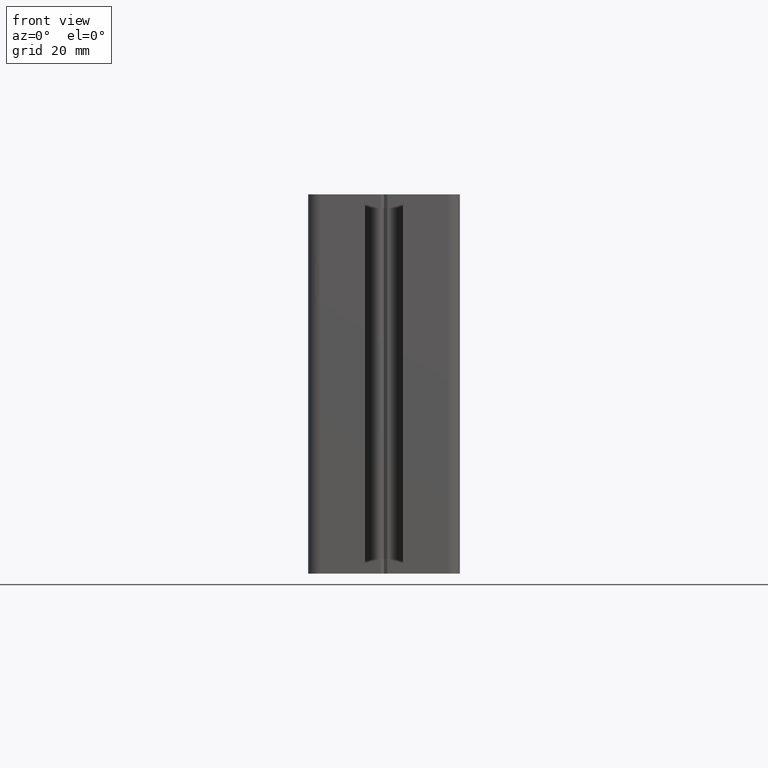
[diagram: clean part render]
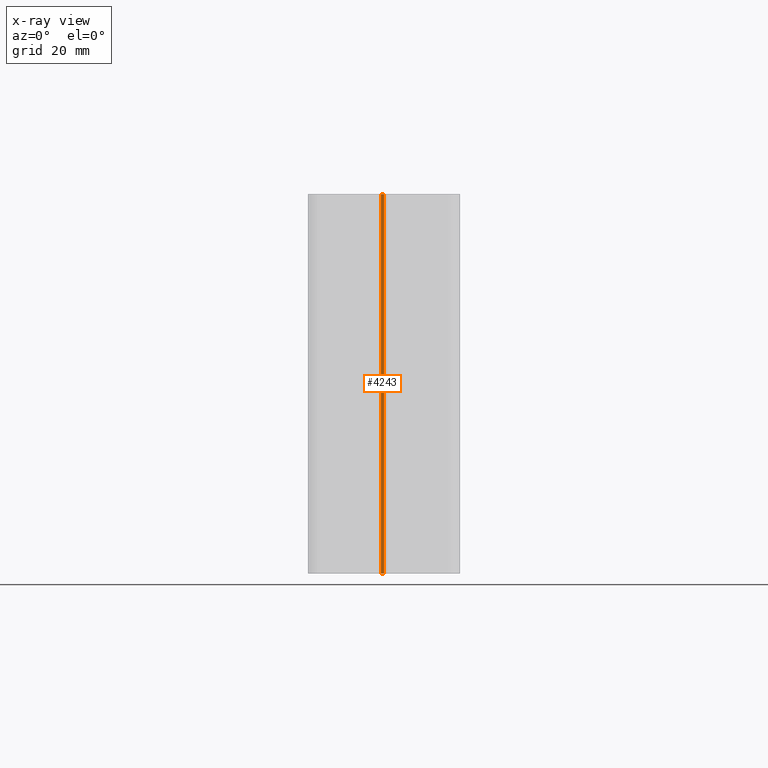
[diagram: x-ray — body ghosted, one internal face saturated and labeled with its STEP entity id]
A machine part, front view, then the same camera in x-ray: the body is ghosted and one INTERNAL B-rep face — a face not visible from any outside direction — is saturated and labeled: STEP entity #4243.
In plain terms, the highlighted planar face has unit normal (-0.5, -0.866, 0).
Its self-contained STEP definition (entity closure, byte-faithful):
#1030 = VERTEX_POINT ( 'NONE', #7960 ) ;
#1032 = EDGE_CURVE ( 'NONE', #1030, #1033, #7959, .T. ) ;
#1033 = VERTEX_POINT ( 'NONE', #7955 ) ;
#1964 = VERTEX_POINT ( 'NONE', #9595 ) ;
#1966 = EDGE_CURVE ( 'NONE', #1967, #1964, #9657, .T. ) ;
#1967 = VERTEX_POINT ( 'NONE', #9653 ) ;
#4167 = EDGE_LOOP ( 'NONE', ( #4168, #4221, #4223, #4224 ) ) ;
#4168 = ORIENTED_EDGE ( 'NONE', *, *, #1966, .T. ) ;
#4221 = ORIENTED_EDGE ( 'NONE', *, *, #4222, .F. ) ;
#4222 = EDGE_CURVE ( 'NONE', #1033, #1964, #13128, .T. ) ;
#4223 = ORIENTED_EDGE ( 'NONE', *, *, #1032, .F. ) ;
#4224 = ORIENTED_EDGE ( 'NONE', *, *, #4240, .T. ) ;
#4240 = EDGE_CURVE ( 'NONE', #1030, #1967, #13167, .T. ) ;
#4243 = ADVANCED_FACE ( 'NONE', ( #13163 ), #13162, .F. ) ;
#7955 = CARTESIAN_POINT ( 'NONE',  ( -0.8660244501101146400, 67.50000209808349900, 100.0000000000000000 ) ) ;
#7956 = DIRECTION ( 'NONE',  ( -0.8660254037844390400, 0.4999999999999993300, 0.0000000000000000000 ) ) ;
#7957 = VECTOR ( 'NONE', #7956, 1000.000000000000000 ) ;
#7958 = CARTESIAN_POINT ( 'NONE',  ( 9.536743263999999900E-007, 67.00000209808349900, 100.0000000000000000 ) ) ;
#7959 = LINE ( 'NONE', #7958, #7957 ) ;
#7960 = CARTESIAN_POINT ( 'NONE',  ( 9.536743263999999900E-007, 67.00000209808349900, 100.0000000000000000 ) ) ;
#9595 = CARTESIAN_POINT ( 'NONE',  ( -0.8660244501101146400, 67.50000209808349900, 0.0000000000000000000 ) ) ;
#9653 = CARTESIAN_POINT ( 'NONE',  ( 9.536743263999999900E-007, 67.00000209808349900, 0.0000000000000000000 ) ) ;
#9654 = DIRECTION ( 'NONE',  ( -0.8660254037844390400, 0.4999999999999993300, 0.0000000000000000000 ) ) ;
#9655 = VECTOR ( 'NONE', #9654, 1000.000000000000000 ) ;
#9656 = CARTESIAN_POINT ( 'NONE',  ( 9.536743263999999900E-007, 67.00000209808349900, 0.0000000000000000000 ) ) ;
#9657 = LINE ( 'NONE', #9656, #9655 ) ;
#13125 = DIRECTION ( 'NONE',  ( 0.0000000000000000000, 0.0000000000000000000, -1.000000000000000000 ) ) ;
#13126 = VECTOR ( 'NONE', #13125, 1000.000000000000000 ) ;
#13127 = CARTESIAN_POINT ( 'NONE',  ( -0.8660244501101146400, 67.50000209808349900, 100.0000000000000000 ) ) ;
#13128 = LINE ( 'NONE', #13127, #13126 ) ;
#13158 = DIRECTION ( 'NONE',  ( 0.8660254037844390400, -0.4999999999999993300, 0.0000000000000000000 ) ) ;
#13159 = DIRECTION ( 'NONE',  ( -0.4999999999999993300, -0.8660254037844390400, 0.0000000000000000000 ) ) ;
#13160 = CARTESIAN_POINT ( 'NONE',  ( 9.536743263999999900E-007, 67.00000209808349900, 100.0000000000000000 ) ) ;
#13161 = AXIS2_PLACEMENT_3D ( 'NONE', #13160, #13159, #13158 ) ;
#13162 = PLANE ( 'NONE',  #13161 ) ;
#13163 = FACE_OUTER_BOUND ( 'NONE', #4167, .T. ) ;
#13164 = DIRECTION ( 'NONE',  ( 0.0000000000000000000, 0.0000000000000000000, -1.000000000000000000 ) ) ;
#13165 = VECTOR ( 'NONE', #13164, 1000.000000000000000 ) ;
#13166 = CARTESIAN_POINT ( 'NONE',  ( 9.536743263999999900E-007, 67.00000209808349900, 100.0000000000000000 ) ) ;
#13167 = LINE ( 'NONE', #13166, #13165 ) ;